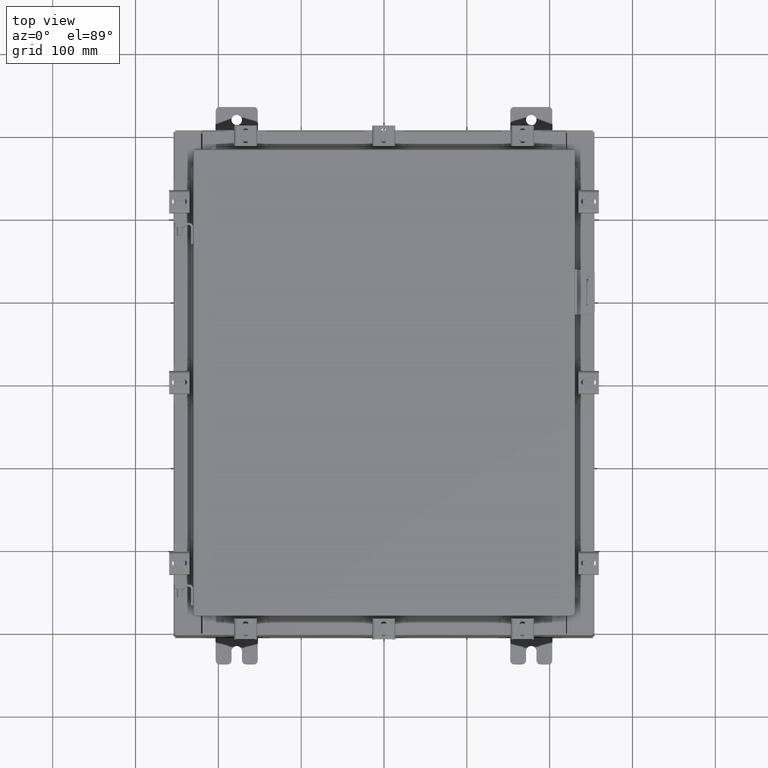
[diagram: clean part render]
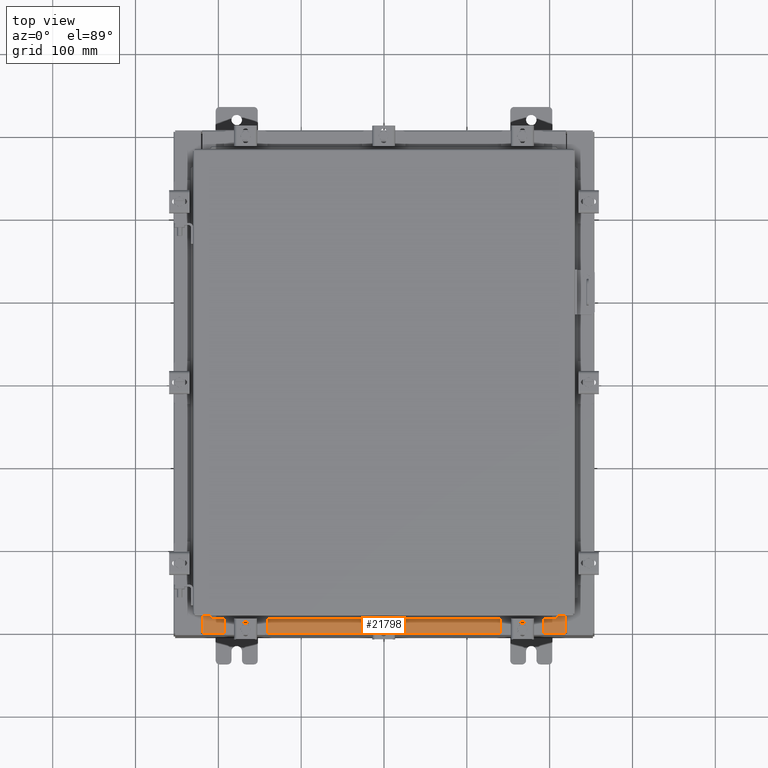
[diagram: same view with one face highlighted and labeled with its STEP entity id]
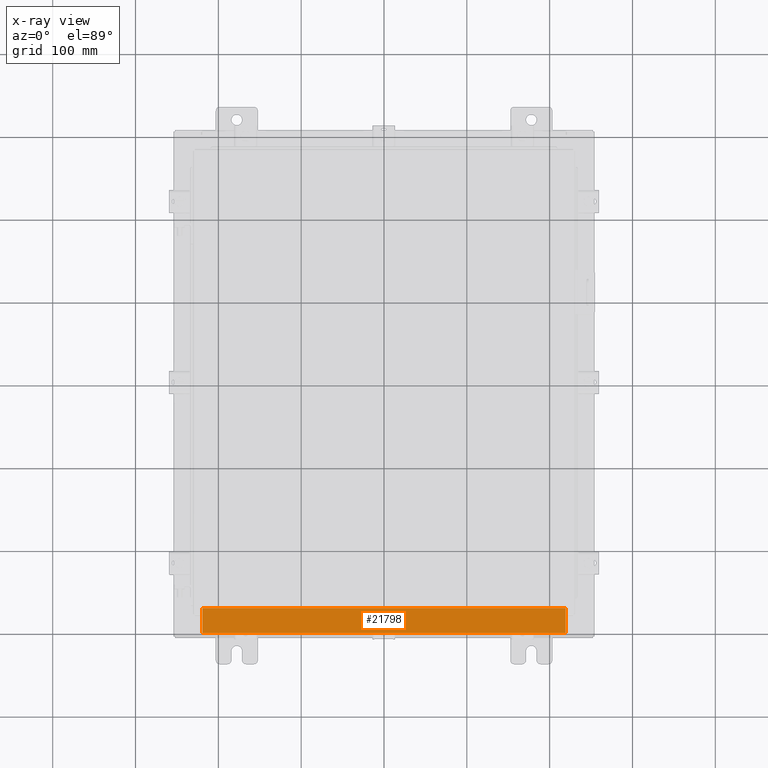
[diagram: x-ray of the same camera — body ghosted, the highlighted face saturated]
A machine part, top view. The second image highlights one B-rep face of the part: STEP entity #21798.
The next image is the same camera in x-ray: the body ghosted, the highlighted face saturated — about 0% of this face is hidden behind the body in this view.
In plain terms, the highlighted planar face has unit normal (-0, -0, 1).
Its self-contained STEP definition (entity closure, byte-faithful):
#21 = DIRECTION ( 'NONE',  ( -0.0000000000000000000, 1.000000000000000000, -3.566381192773190000E-015 ) ) ;
#848 = CARTESIAN_POINT ( 'NONE',  ( -2.773851121247567100E-018, -0.08770000000000000000, 4.000000000000000900 ) ) ;
#960 = ORIENTED_EDGE ( 'NONE', *, *, #17471, .F. ) ;
#1132 = CARTESIAN_POINT ( 'NONE',  ( -8.637200000000000000, -0.08770000000000000000, 4.000000000000000000 ) ) ;
#1389 = EDGE_CURVE ( 'NONE', #3150, #2283, #2875, .T. ) ;
#1523 = CARTESIAN_POINT ( 'NONE',  ( 8.637200000000000000, -1.300299999999999800, 4.000000000000004400 ) ) ;
#1580 = VERTEX_POINT ( 'NONE', #20185 ) ;
#2283 = VERTEX_POINT ( 'NONE', #6891 ) ;
#2875 = LINE ( 'NONE', #18916, #6931 ) ;
#3150 = VERTEX_POINT ( 'NONE', #11804 ) ;
#4057 = FACE_OUTER_BOUND ( 'NONE', #12053, .T. ) ;
#5449 = AXIS2_PLACEMENT_3D ( 'NONE', #19954, #9538, #21754 ) ;
#5706 = VECTOR ( 'NONE', #9495, 39.37007874015748100 ) ;
#6245 = LINE ( 'NONE', #848, #5706 ) ;
#6383 = LINE ( 'NONE', #10401, #15628 ) ;
#6891 = CARTESIAN_POINT ( 'NONE',  ( -8.637200000000000000, -1.287299999999999200, 4.000000000000004400 ) ) ;
#6913 = DIRECTION ( 'NONE',  ( -1.000000000000000000, 0.0000000000000000000, 0.0000000000000000000 ) ) ;
#6931 = VECTOR ( 'NONE', #6913, 39.37007874015748100 ) ;
#7723 = PLANE ( 'NONE',  #5449 ) ;
#8227 = VECTOR ( 'NONE', #10221, 39.37007874015748100 ) ;
#9295 = LINE ( 'NONE', #1523, #8227 ) ;
#9495 = DIRECTION ( 'NONE',  ( -1.000000000000000000, 3.162886113166609200E-017, -1.128005754888089100E-031 ) ) ;
#9538 = DIRECTION ( 'NONE',  ( 0.0000000000000000000, 3.566381192773190000E-015, 1.000000000000000000 ) ) ;
#10221 = DIRECTION ( 'NONE',  ( -0.0000000000000000000, -1.000000000000000000, 3.566381192773190000E-015 ) ) ;
#10401 = CARTESIAN_POINT ( 'NONE',  ( -8.637200000000000000, -0.07469999999999973900, 4.000000000000000000 ) ) ;
#10647 = EDGE_CURVE ( 'NONE', #1580, #12455, #6245, .T. ) ;
#11804 = CARTESIAN_POINT ( 'NONE',  ( 8.637200000000000000, -1.287299999999999900, 4.000000000000004400 ) ) ;
#12053 = EDGE_LOOP ( 'NONE', ( #960, #21131, #22544, #16295 ) ) ;
#12455 = VERTEX_POINT ( 'NONE', #1132 ) ;
#15628 = VECTOR ( 'NONE', #21, 39.37007874015748100 ) ;
#16295 = ORIENTED_EDGE ( 'NONE', *, *, #10647, .T. ) ;
#17471 = EDGE_CURVE ( 'NONE', #2283, #12455, #6383, .T. ) ;
#18865 = EDGE_CURVE ( 'NONE', #1580, #3150, #9295, .T. ) ;
#18916 = CARTESIAN_POINT ( 'NONE',  ( 8.637200000000000000, -1.287299999999999900, 4.000000000000003600 ) ) ;
#19954 = CARTESIAN_POINT ( 'NONE',  ( 0.0000000000000000000, 1.425992975200418500E-014, 4.000000000000000000 ) ) ;
#20185 = CARTESIAN_POINT ( 'NONE',  ( 8.637200000000000000, -0.08769999999999965300, 4.000000000000000000 ) ) ;
#21131 = ORIENTED_EDGE ( 'NONE', *, *, #1389, .F. ) ;
#21754 = DIRECTION ( 'NONE',  ( 0.0000000000000000000, -1.000000000000000000, 3.566381192773190000E-015 ) ) ;
#21798 = ADVANCED_FACE ( 'NONE', ( #4057 ), #7723, .T. ) ;
#22544 = ORIENTED_EDGE ( 'NONE', *, *, #18865, .F. ) ;